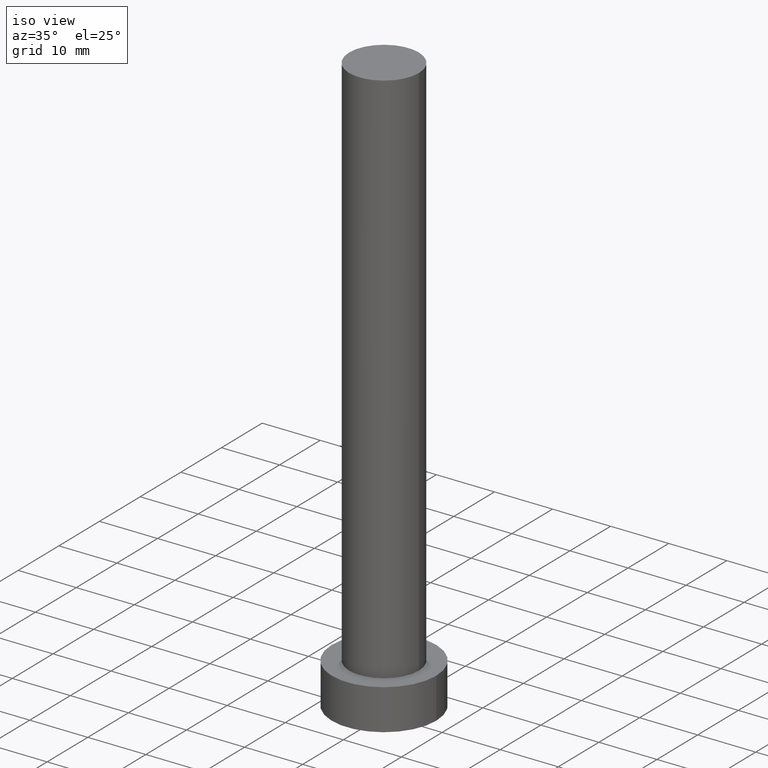
[diagram: clean part render]
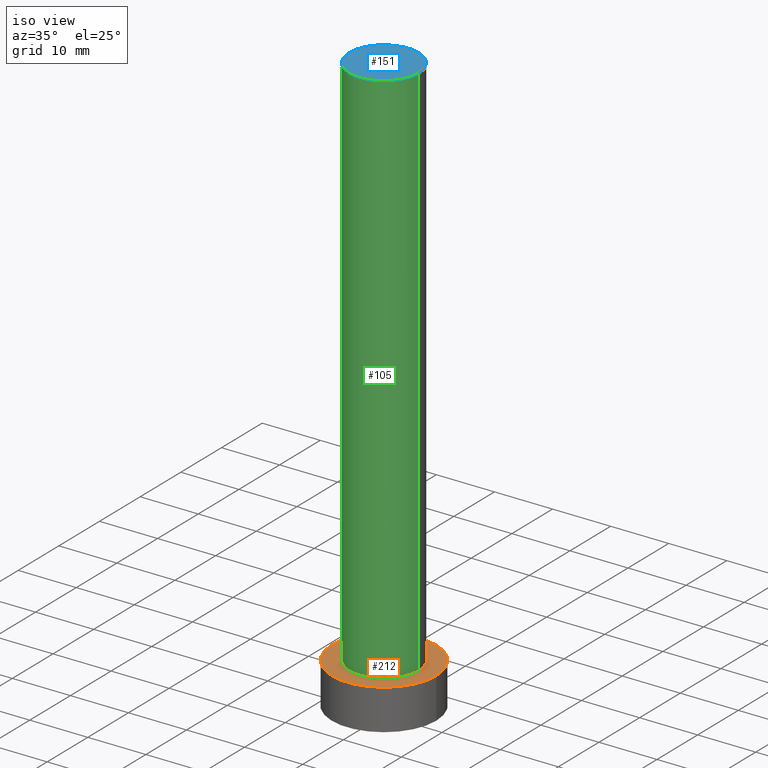
[diagram: same view with three faces highlighted in distinct colors, each labeled with its STEP entity id]
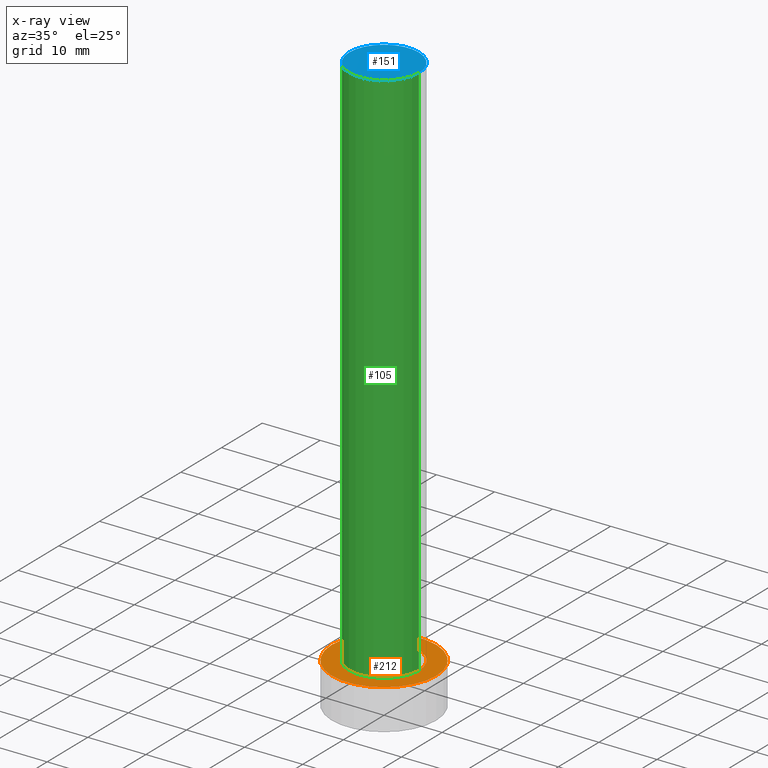
[diagram: x-ray of the same camera — body ghosted, the three highlighted faces saturated]
A machine part, iso view with three faces highlighted in distinct colors.
The next image is the same camera in x-ray (body ghosted, the three faces saturated) — at least one of them is partly hidden behind the body in this view.
Their STEP definitions:

[orange] entity #212 — the highlighted planar face has unit normal (0, 0, 1).
#1 = EDGE_CURVE ( 'NONE', #107, #247, #118, .T. ) ;
#9 = CARTESIAN_POINT ( 'NONE',  ( 0.000000000000000000, 0.000000000000000000, 7.000000000000000000 ) ) ;
#12 = FACE_OUTER_BOUND ( 'NONE', #184, .T. ) ;
#14 = CARTESIAN_POINT ( 'NONE',  ( -6.000000000000000888, 0.000000000000000000, 7.000000000000000000 ) ) ;
#16 = DIRECTION ( 'NONE',  ( 1.000000000000000000, 0.000000000000000000, 0.000000000000000000 ) ) ;
#17 = CIRCLE ( 'NONE', #106, 6.000000000000000888 ) ;
#30 = ORIENTED_EDGE ( 'NONE', *, *, #33, .F. ) ;
#31 = DIRECTION ( 'NONE',  ( 0.000000000000000000, 0.000000000000000000, 1.000000000000000000 ) ) ;
#32 = DIRECTION ( 'NONE',  ( 0.000000000000000000, 0.000000000000000000, 1.000000000000000000 ) ) ;
#33 = EDGE_CURVE ( 'NONE', #37, #242, #17, .T. ) ;
#34 = CARTESIAN_POINT ( 'NONE',  ( 0.000000000000000000, 0.000000000000000000, 7.000000000000000000 ) ) ;
#37 = VERTEX_POINT ( 'NONE', #14 ) ;
#49 = AXIS2_PLACEMENT_3D ( 'NONE', #9, #32, #230 ) ;
#57 = CARTESIAN_POINT ( 'NONE',  ( 0.000000000000000000, 0.000000000000000000, 7.000000000000000000 ) ) ;
#60 = CARTESIAN_POINT ( 'NONE',  ( 0.000000000000000000, 0.000000000000000000, 7.000000000000000000 ) ) ;
#69 = CARTESIAN_POINT ( 'NONE',  ( 9.000000000000000000, 1.102182119232617714E-15, 7.000000000000000000 ) ) ;
#77 = DIRECTION ( 'NONE',  ( 1.000000000000000000, 0.000000000000000000, 0.000000000000000000 ) ) ;
#85 = CIRCLE ( 'NONE', #152, 9.000000000000000000 ) ;
#90 = ORIENTED_EDGE ( 'NONE', *, *, #177, .F. ) ;
#91 = CARTESIAN_POINT ( 'NONE',  ( 0.000000000000000000, 0.000000000000000000, 7.000000000000000000 ) ) ;
#101 = AXIS2_PLACEMENT_3D ( 'NONE', #34, #131, #250 ) ;
#104 = CARTESIAN_POINT ( 'NONE',  ( -9.000000000000000000, 0.000000000000000000, 7.000000000000000000 ) ) ;
#106 = AXIS2_PLACEMENT_3D ( 'NONE', #91, #147, #125 ) ;
#107 = VERTEX_POINT ( 'NONE', #69 ) ;
#110 = ORIENTED_EDGE ( 'NONE', *, *, #196, .T. ) ;
#118 = CIRCLE ( 'NONE', #49, 9.000000000000000000 ) ;
#125 = DIRECTION ( 'NONE',  ( 1.000000000000000000, 0.000000000000000000, 0.000000000000000000 ) ) ;
#127 = PLANE ( 'NONE',  #101 ) ;
#130 = CIRCLE ( 'NONE', #145, 6.000000000000000888 ) ;
#131 = DIRECTION ( 'NONE',  ( 0.000000000000000000, 0.000000000000000000, 1.000000000000000000 ) ) ;
#142 = DIRECTION ( 'NONE',  ( 0.000000000000000000, 0.000000000000000000, 1.000000000000000000 ) ) ;
#145 = AXIS2_PLACEMENT_3D ( 'NONE', #57, #142, #16 ) ;
#147 = DIRECTION ( 'NONE',  ( 0.000000000000000000, 0.000000000000000000, 1.000000000000000000 ) ) ;
#152 = AXIS2_PLACEMENT_3D ( 'NONE', #60, #31, #77 ) ;
#163 = EDGE_LOOP ( 'NONE', ( #30, #90 ) ) ;
#168 = FACE_BOUND ( 'NONE', #163, .T. ) ;
#177 = EDGE_CURVE ( 'NONE', #242, #37, #130, .T. ) ;
#184 = EDGE_LOOP ( 'NONE', ( #110, #226 ) ) ;
#196 = EDGE_CURVE ( 'NONE', #247, #107, #85, .T. ) ;
#212 = ADVANCED_FACE ( 'NONE', ( #168, #12 ), #127, .T. ) ;
#226 = ORIENTED_EDGE ( 'NONE', *, *, #1, .T. ) ;
#230 = DIRECTION ( 'NONE',  ( 1.000000000000000000, 0.000000000000000000, 0.000000000000000000 ) ) ;
#242 = VERTEX_POINT ( 'NONE', #252 ) ;
#247 = VERTEX_POINT ( 'NONE', #104 ) ;
#250 = DIRECTION ( 'NONE',  ( 1.000000000000000000, 0.000000000000000000, -0.000000000000000000 ) ) ;
#252 = CARTESIAN_POINT ( 'NONE',  ( 6.000000000000000888, 7.347880794884119736E-16, 7.000000000000000000 ) ) ;

[blue] entity #151 — the highlighted planar face has unit normal (0, 0, 1).
#11 = CIRCLE ( 'NONE', #218, 6.000000000000000888 ) ;
#24 = DIRECTION ( 'NONE',  ( 0.000000000000000000, 0.000000000000000000, 1.000000000000000000 ) ) ;
#25 = AXIS2_PLACEMENT_3D ( 'NONE', #123, #204, #162 ) ;
#36 = CARTESIAN_POINT ( 'NONE',  ( 6.000000000000000888, 7.347880794884119736E-16, 100.0000000000000000 ) ) ;
#48 = CARTESIAN_POINT ( 'NONE',  ( 0.000000000000000000, 0.000000000000000000, 100.0000000000000000 ) ) ;
#52 = EDGE_LOOP ( 'NONE', ( #239, #228 ) ) ;
#53 = FACE_OUTER_BOUND ( 'NONE', #52, .T. ) ;
#61 = CIRCLE ( 'NONE', #178, 6.000000000000000888 ) ;
#71 = VERTEX_POINT ( 'NONE', #36 ) ;
#86 = DIRECTION ( 'NONE',  ( 1.000000000000000000, 0.000000000000000000, 0.000000000000000000 ) ) ;
#99 = DIRECTION ( 'NONE',  ( 1.000000000000000000, 0.000000000000000000, 0.000000000000000000 ) ) ;
#123 = CARTESIAN_POINT ( 'NONE',  ( 0.000000000000000000, 0.000000000000000000, 100.0000000000000000 ) ) ;
#151 = ADVANCED_FACE ( 'NONE', ( #53 ), #180, .T. ) ;
#159 = EDGE_CURVE ( 'NONE', #223, #71, #11, .T. ) ;
#162 = DIRECTION ( 'NONE',  ( 1.000000000000000000, 0.000000000000000000, -0.000000000000000000 ) ) ;
#178 = AXIS2_PLACEMENT_3D ( 'NONE', #237, #24, #99 ) ;
#180 = PLANE ( 'NONE',  #25 ) ;
#199 = CARTESIAN_POINT ( 'NONE',  ( -6.000000000000000888, 0.000000000000000000, 100.0000000000000000 ) ) ;
#200 = DIRECTION ( 'NONE',  ( 0.000000000000000000, 0.000000000000000000, 1.000000000000000000 ) ) ;
#204 = DIRECTION ( 'NONE',  ( 0.000000000000000000, 0.000000000000000000, 1.000000000000000000 ) ) ;
#218 = AXIS2_PLACEMENT_3D ( 'NONE', #48, #200, #86 ) ;
#223 = VERTEX_POINT ( 'NONE', #199 ) ;
#228 = ORIENTED_EDGE ( 'NONE', *, *, #241, .T. ) ;
#237 = CARTESIAN_POINT ( 'NONE',  ( 0.000000000000000000, 0.000000000000000000, 100.0000000000000000 ) ) ;
#239 = ORIENTED_EDGE ( 'NONE', *, *, #159, .T. ) ;
#241 = EDGE_CURVE ( 'NONE', #71, #223, #61, .T. ) ;

[green] entity #105 — the highlighted cylindrical surface (partial cylindrical patch) has radius 6 mm, axis along (-0, -0, -1).
#10 = EDGE_LOOP ( 'NONE', ( #202, #185, #108, #140 ) ) ;
#11 = CIRCLE ( 'NONE', #218, 6.000000000000000888 ) ;
#14 = CARTESIAN_POINT ( 'NONE',  ( -6.000000000000000888, 0.000000000000000000, 7.000000000000000000 ) ) ;
#17 = CIRCLE ( 'NONE', #106, 6.000000000000000888 ) ;
#21 = CARTESIAN_POINT ( 'NONE',  ( 0.000000000000000000, 0.000000000000000000, 100.0000000000000000 ) ) ;
#33 = EDGE_CURVE ( 'NONE', #37, #242, #17, .T. ) ;
#36 = CARTESIAN_POINT ( 'NONE',  ( 6.000000000000000888, 7.347880794884119736E-16, 100.0000000000000000 ) ) ;
#37 = VERTEX_POINT ( 'NONE', #14 ) ;
#41 = LINE ( 'NONE', #249, #43 ) ;
#43 = VECTOR ( 'NONE', #81, 1000.000000000000000 ) ;
#45 = FACE_OUTER_BOUND ( 'NONE', #10, .T. ) ;
#48 = CARTESIAN_POINT ( 'NONE',  ( 0.000000000000000000, 0.000000000000000000, 100.0000000000000000 ) ) ;
#56 = VECTOR ( 'NONE', #67, 1000.000000000000000 ) ;
#63 = CYLINDRICAL_SURFACE ( 'NONE', #254, 6.000000000000000888 ) ;
#66 = EDGE_CURVE ( 'NONE', #223, #37, #150, .T. ) ;
#67 = DIRECTION ( 'NONE',  ( -0.000000000000000000, -0.000000000000000000, -1.000000000000000000 ) ) ;
#71 = VERTEX_POINT ( 'NONE', #36 ) ;
#81 = DIRECTION ( 'NONE',  ( -0.000000000000000000, -0.000000000000000000, -1.000000000000000000 ) ) ;
#86 = DIRECTION ( 'NONE',  ( 1.000000000000000000, 0.000000000000000000, 0.000000000000000000 ) ) ;
#91 = CARTESIAN_POINT ( 'NONE',  ( 0.000000000000000000, 0.000000000000000000, 7.000000000000000000 ) ) ;
#105 = ADVANCED_FACE ( 'NONE', ( #45 ), #63, .T. ) ;
#106 = AXIS2_PLACEMENT_3D ( 'NONE', #91, #147, #125 ) ;
#108 = ORIENTED_EDGE ( 'NONE', *, *, #66, .T. ) ;
#114 = DIRECTION ( 'NONE',  ( -1.000000000000000000, 0.000000000000000000, 0.000000000000000000 ) ) ;
#125 = DIRECTION ( 'NONE',  ( 1.000000000000000000, 0.000000000000000000, 0.000000000000000000 ) ) ;
#128 = CARTESIAN_POINT ( 'NONE',  ( -6.000000000000000888, 0.000000000000000000, 100.0000000000000000 ) ) ;
#140 = ORIENTED_EDGE ( 'NONE', *, *, #33, .T. ) ;
#147 = DIRECTION ( 'NONE',  ( 0.000000000000000000, 0.000000000000000000, 1.000000000000000000 ) ) ;
#150 = LINE ( 'NONE', #128, #56 ) ;
#155 = DIRECTION ( 'NONE',  ( -0.000000000000000000, -0.000000000000000000, -1.000000000000000000 ) ) ;
#159 = EDGE_CURVE ( 'NONE', #223, #71, #11, .T. ) ;
#185 = ORIENTED_EDGE ( 'NONE', *, *, #159, .F. ) ;
#199 = CARTESIAN_POINT ( 'NONE',  ( -6.000000000000000888, 0.000000000000000000, 100.0000000000000000 ) ) ;
#200 = DIRECTION ( 'NONE',  ( 0.000000000000000000, 0.000000000000000000, 1.000000000000000000 ) ) ;
#202 = ORIENTED_EDGE ( 'NONE', *, *, #238, .F. ) ;
#218 = AXIS2_PLACEMENT_3D ( 'NONE', #48, #200, #86 ) ;
#223 = VERTEX_POINT ( 'NONE', #199 ) ;
#238 = EDGE_CURVE ( 'NONE', #71, #242, #41, .T. ) ;
#242 = VERTEX_POINT ( 'NONE', #252 ) ;
#249 = CARTESIAN_POINT ( 'NONE',  ( 6.000000000000000888, 7.347880794884119736E-16, 100.0000000000000000 ) ) ;
#252 = CARTESIAN_POINT ( 'NONE',  ( 6.000000000000000888, 7.347880794884119736E-16, 7.000000000000000000 ) ) ;
#254 = AXIS2_PLACEMENT_3D ( 'NONE', #21, #155, #114 ) ;